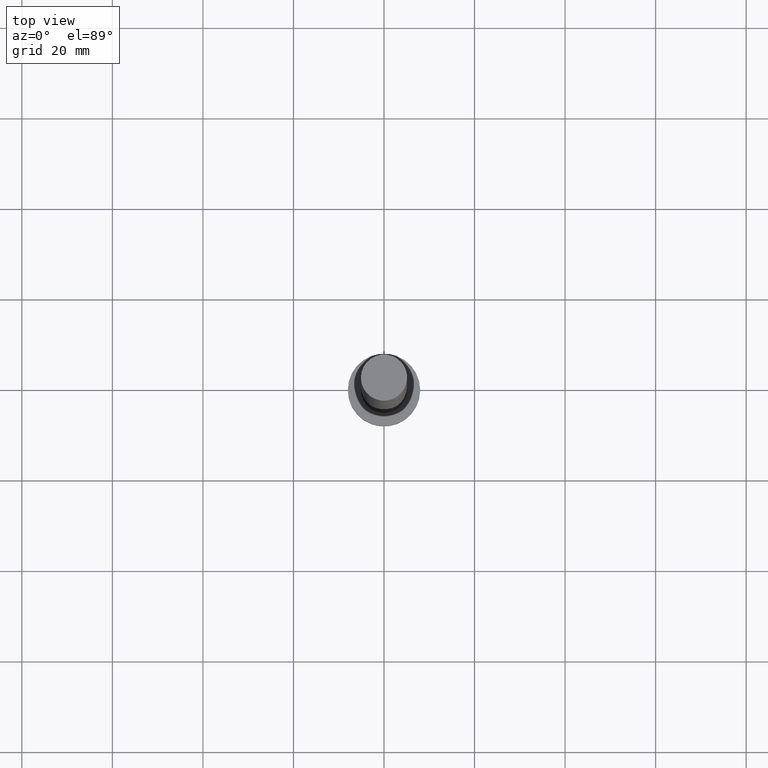
[diagram: clean part render]
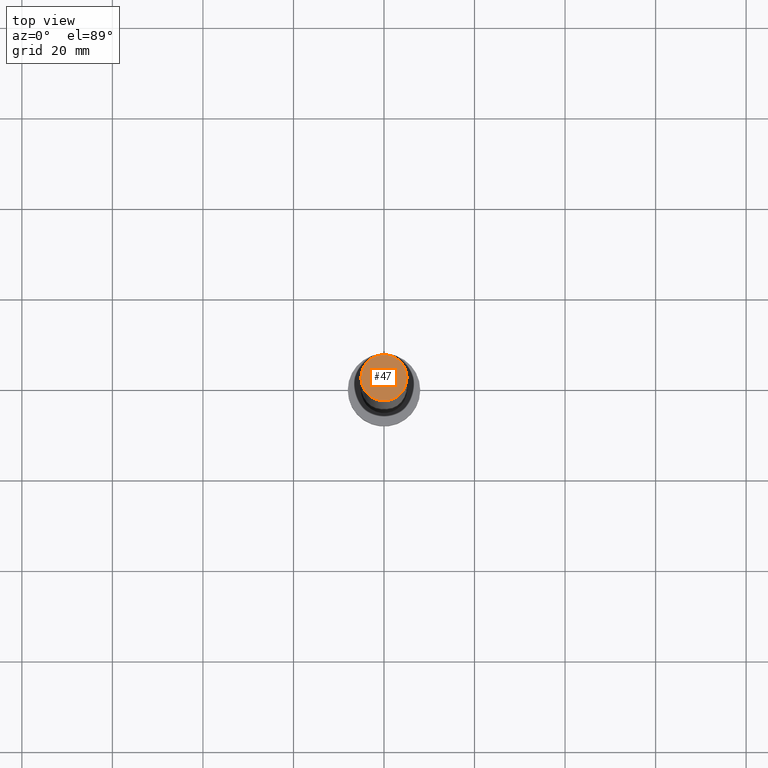
[diagram: same view with one face highlighted and labeled with its STEP entity id]
A machine part, top view. The second image highlights one B-rep face of the part: STEP entity #47.
In plain terms, the highlighted planar face has unit normal (0, 0, 1).
Its self-contained STEP definition (entity closure, byte-faithful):
#10 = CARTESIAN_POINT ( 'NONE',  ( 0.000000000000000000, 0.000000000000000000, 160.0000000000000000 ) ) ;
#12 = CARTESIAN_POINT ( 'NONE',  ( 0.000000000000000000, 0.000000000000000000, 160.0000000000000000 ) ) ;
#16 = DIRECTION ( 'NONE',  ( 0.000000000000000000, 0.000000000000000000, 1.000000000000000000 ) ) ;
#25 = EDGE_CURVE ( 'NONE', #130, #110, #45, .T. ) ;
#29 = DIRECTION ( 'NONE',  ( 0.000000000000000000, 0.000000000000000000, 1.000000000000000000 ) ) ;
#32 = PLANE ( 'NONE',  #35 ) ;
#35 = AXIS2_PLACEMENT_3D ( 'NONE', #12, #206, #186 ) ;
#45 = CIRCLE ( 'NONE', #136, 5.100000000000001421 ) ;
#47 = ADVANCED_FACE ( 'NONE', ( #48 ), #32, .T. ) ;
#48 = FACE_OUTER_BOUND ( 'NONE', #185, .T. ) ;
#71 = AXIS2_PLACEMENT_3D ( 'NONE', #10, #29, #193 ) ;
#72 = ORIENTED_EDGE ( 'NONE', *, *, #25, .T. ) ;
#108 = CARTESIAN_POINT ( 'NONE',  ( 0.000000000000000000, 0.000000000000000000, 160.0000000000000000 ) ) ;
#110 = VERTEX_POINT ( 'NONE', #168 ) ;
#128 = DIRECTION ( 'NONE',  ( 1.000000000000000000, 0.000000000000000000, 0.000000000000000000 ) ) ;
#130 = VERTEX_POINT ( 'NONE', #225 ) ;
#136 = AXIS2_PLACEMENT_3D ( 'NONE', #108, #16, #128 ) ;
#162 = ORIENTED_EDGE ( 'NONE', *, *, #219, .T. ) ;
#168 = CARTESIAN_POINT ( 'NONE',  ( 5.100000000000001421, 6.245698675651502811E-16, 160.0000000000000000 ) ) ;
#185 = EDGE_LOOP ( 'NONE', ( #72, #162 ) ) ;
#186 = DIRECTION ( 'NONE',  ( 1.000000000000000000, 0.000000000000000000, -0.000000000000000000 ) ) ;
#193 = DIRECTION ( 'NONE',  ( 1.000000000000000000, 0.000000000000000000, 0.000000000000000000 ) ) ;
#195 = CIRCLE ( 'NONE', #71, 5.100000000000001421 ) ;
#206 = DIRECTION ( 'NONE',  ( 0.000000000000000000, 0.000000000000000000, 1.000000000000000000 ) ) ;
#219 = EDGE_CURVE ( 'NONE', #110, #130, #195, .T. ) ;
#225 = CARTESIAN_POINT ( 'NONE',  ( -5.100000000000001421, 0.000000000000000000, 160.0000000000000000 ) ) ;